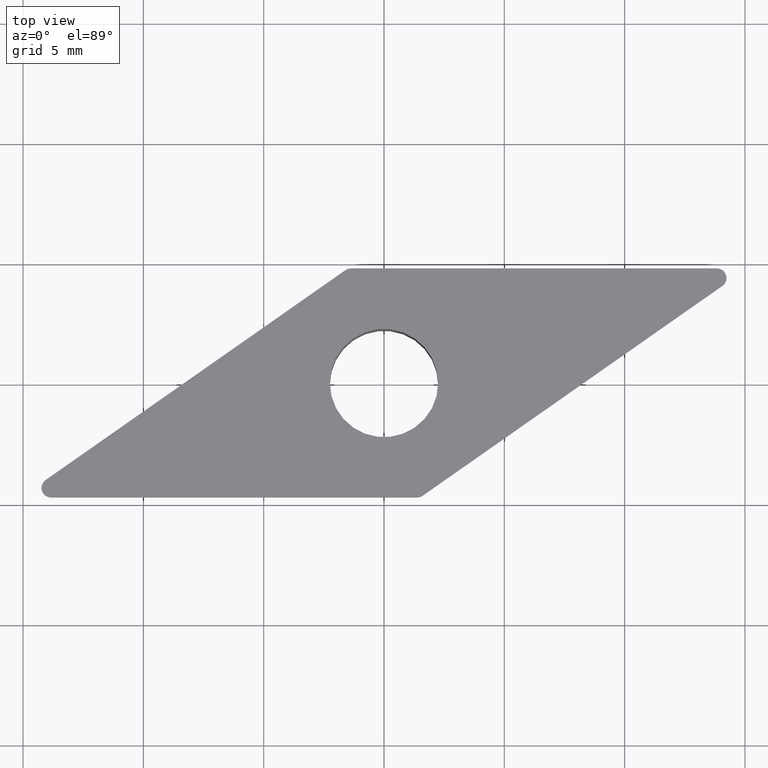
[diagram: clean part render]
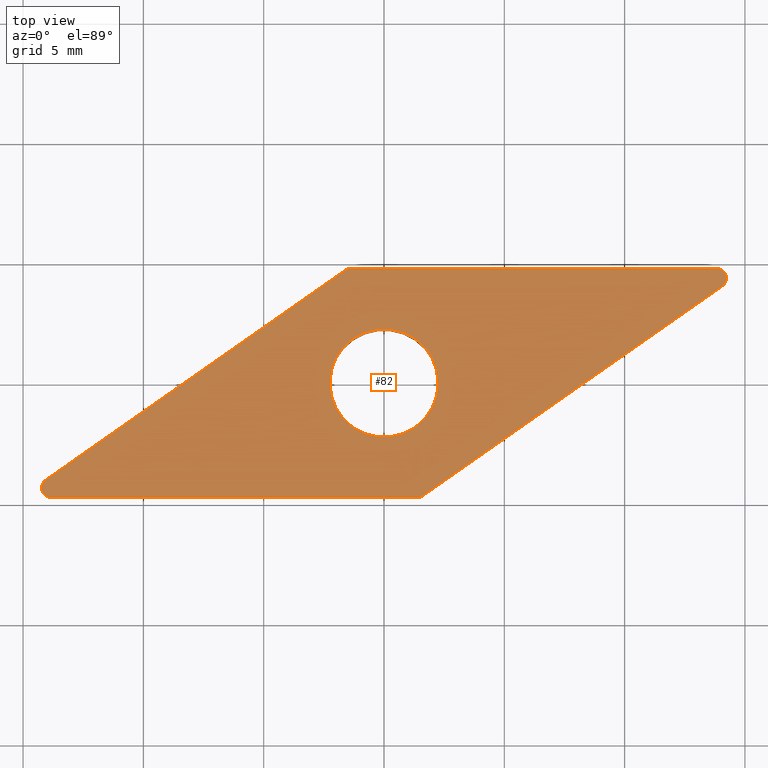
[diagram: same view with one face highlighted and labeled with its STEP entity id]
A machine part, top view. The second image highlights one B-rep face of the part: STEP entity #82.
In plain terms, the highlighted planar face has unit normal (0, 0, -1).
Its self-contained STEP definition (entity closure, byte-faithful):
#11 = EDGE_CURVE ( 'NONE', #434, #347, #332, .T. ) ;
#12 = ORIENTED_EDGE ( 'NONE', *, *, #296, .T. ) ;
#13 = CARTESIAN_POINT ( 'NONE',  ( 13.83608232530964200, 4.762500000000003700, 0.0000000000000000000 ) ) ;
#18 = EDGE_CURVE ( 'NONE', #356, #384, #289, .T. ) ;
#20 = EDGE_LOOP ( 'NONE', ( #33, #350 ) ) ;
#22 = CIRCLE ( 'NONE', #303, 2.250000000000000000 ) ;
#33 = ORIENTED_EDGE ( 'NONE', *, *, #368, .F. ) ;
#35 = CARTESIAN_POINT ( 'NONE',  ( -14.06551289985006100, -4.034839182284403400, 0.0000000000000000000 ) ) ;
#42 = VERTEX_POINT ( 'NONE', #13 ) ;
#52 = ORIENTED_EDGE ( 'NONE', *, *, #397, .T. ) ;
#53 = AXIS2_PLACEMENT_3D ( 'NONE', #328, #379, #472 ) ;
#60 = DIRECTION ( 'NONE',  ( -1.000000000000000000, 0.0000000000000000000, -0.0000000000000000000 ) ) ;
#69 = DIRECTION ( 'NONE',  ( -0.0000000000000000000, -0.0000000000000000000, 1.000000000000000000 ) ) ;
#70 = CARTESIAN_POINT ( 'NONE',  ( -13.83608232530964500, -4.362500000000001600, 0.0000000000000000000 ) ) ;
#80 = CIRCLE ( 'NONE', #90, 0.3999999999999993000 ) ;
#82 = ADVANCED_FACE ( 'NONE', ( #269, #284 ), #343, .F. ) ;
#90 = AXIS2_PLACEMENT_3D ( 'NONE', #176, #175, #174 ) ;
#91 = CARTESIAN_POINT ( 'NONE',  ( -13.83608232530964500, -4.762500000000002000, 0.0000000000000000000 ) ) ;
#93 = VECTOR ( 'NONE', #152, 1000.000000000000000 ) ;
#107 = LINE ( 'NONE', #385, #93 ) ;
#108 = EDGE_CURVE ( 'NONE', #384, #42, #245, .T. ) ;
#121 = DIRECTION ( 'NONE',  ( -1.000000000000000000, 0.0000000000000000000, 0.0000000000000000000 ) ) ;
#129 = CARTESIAN_POINT ( 'NONE',  ( 15.10472024625493900, 4.762500000000003700, 0.0000000000000000000 ) ) ;
#134 = VECTOR ( 'NONE', #322, 1000.000000000000000 ) ;
#152 = DIRECTION ( 'NONE',  ( 1.000000000000000000, 5.223078789528969500E-017, -0.0000000000000000000 ) ) ;
#155 = CARTESIAN_POINT ( 'NONE',  ( 1.604921541024971800, -4.690160817715598000, 0.0000000000000000000 ) ) ;
#157 = CARTESIAN_POINT ( 'NONE',  ( -15.10472024625494200, -4.762500000000002000, 0.0000000000000000000 ) ) ;
#163 = CARTESIAN_POINT ( 'NONE',  ( -2.250000000000000000, 2.755455298081544300E-016, 0.0000000000000000000 ) ) ;
#174 = DIRECTION ( 'NONE',  ( -1.000000000000000000, 2.168404344971012800E-015, 0.0000000000000000000 ) ) ;
#175 = DIRECTION ( 'NONE',  ( -0.0000000000000000000, -0.0000000000000000000, 1.000000000000000000 ) ) ;
#176 = CARTESIAN_POINT ( 'NONE',  ( -13.83608232530964500, -4.362500000000001600, 0.0000000000000000000 ) ) ;
#177 = CIRCLE ( 'NONE', #279, 2.250000000000000000 ) ;
#180 = LINE ( 'NONE', #442, #134 ) ;
#188 = CARTESIAN_POINT ( 'NONE',  ( 1.375490966484556300, -4.762500000000001100, 0.0000000000000000000 ) ) ;
#189 = DIRECTION ( 'NONE',  ( 0.0000000000000000000, 0.0000000000000000000, -1.000000000000000000 ) ) ;
#198 = CIRCLE ( 'NONE', #323, 0.3999999999999999700 ) ;
#202 = AXIS2_PLACEMENT_3D ( 'NONE', #70, #214, #334 ) ;
#203 = VECTOR ( 'NONE', #207, 1000.000000000000100 ) ;
#206 = CARTESIAN_POINT ( 'NONE',  ( 2.250000000000000000, 0.0000000000000000000, 0.0000000000000000000 ) ) ;
#207 = DIRECTION ( 'NONE',  ( -0.8191520442889946900, -0.5735764363510417200, -0.0000000000000000000 ) ) ;
#214 = DIRECTION ( 'NONE',  ( -0.0000000000000000000, -0.0000000000000000000, 1.000000000000000000 ) ) ;
#215 = CARTESIAN_POINT ( 'NONE',  ( -14.23608232530964400, -4.362500000000001600, 0.0000000000000000000 ) ) ;
#219 = DIRECTION ( 'NONE',  ( -1.000000000000000000, 1.084202172485504600E-014, 0.0000000000000000000 ) ) ;
#229 = EDGE_CURVE ( 'NONE', #456, #356, #198, .T. ) ;
#230 = DIRECTION ( 'NONE',  ( 1.000000000000000000, 0.0000000000000000000, 0.0000000000000000000 ) ) ;
#235 = DIRECTION ( 'NONE',  ( 0.0000000000000000000, 0.0000000000000000000, 1.000000000000000000 ) ) ;
#239 = CARTESIAN_POINT ( 'NONE',  ( 0.0000000000000000000, 0.0000000000000000000, 0.0000000000000000000 ) ) ;
#244 = DIRECTION ( 'NONE',  ( -0.0000000000000000000, -0.0000000000000000000, 1.000000000000000000 ) ) ;
#245 = CIRCLE ( 'NONE', #53, 0.3999999999999993000 ) ;
#250 = ORIENTED_EDGE ( 'NONE', *, *, #427, .T. ) ;
#256 = CARTESIAN_POINT ( 'NONE',  ( 0.0000000000000000000, 0.0000000000000000000, 0.0000000000000000000 ) ) ;
#257 = ORIENTED_EDGE ( 'NONE', *, *, #450, .T. ) ;
#258 = CARTESIAN_POINT ( 'NONE',  ( -1.604921541024973500, 4.690160817715596200, 0.0000000000000000000 ) ) ;
#259 = CARTESIAN_POINT ( 'NONE',  ( -1.375490966484558500, 4.362499999999998900, 0.0000000000000000000 ) ) ;
#265 = ORIENTED_EDGE ( 'NONE', *, *, #229, .T. ) ;
#269 = FACE_BOUND ( 'NONE', #20, .T. ) ;
#273 = CARTESIAN_POINT ( 'NONE',  ( 1.375490966484556300, -4.362500000000000700, 0.0000000000000000000 ) ) ;
#275 = LINE ( 'NONE', #157, #203 ) ;
#279 = AXIS2_PLACEMENT_3D ( 'NONE', #239, #235, #230 ) ;
#282 = CIRCLE ( 'NONE', #301, 0.3999999999999999700 ) ;
#284 = FACE_OUTER_BOUND ( 'NONE', #357, .T. ) ;
#287 = VECTOR ( 'NONE', #371, 1000.000000000000100 ) ;
#289 = LINE ( 'NONE', #129, #287 ) ;
#294 = ORIENTED_EDGE ( 'NONE', *, *, #11, .T. ) ;
#296 = EDGE_CURVE ( 'NONE', #349, #417, #275, .T. ) ;
#298 = EDGE_CURVE ( 'NONE', #344, #349, #282, .T. ) ;
#301 = AXIS2_PLACEMENT_3D ( 'NONE', #259, #244, #219 ) ;
#303 = AXIS2_PLACEMENT_3D ( 'NONE', #422, #390, #386 ) ;
#322 = DIRECTION ( 'NONE',  ( -1.000000000000000000, -2.611539394764484900E-016, -0.0000000000000000000 ) ) ;
#323 = AXIS2_PLACEMENT_3D ( 'NONE', #273, #69, #121 ) ;
#328 = CARTESIAN_POINT ( 'NONE',  ( 13.83608232530964200, 4.362500000000003400, 0.0000000000000000000 ) ) ;
#332 = CIRCLE ( 'NONE', #202, 0.3999999999999993000 ) ;
#334 = DIRECTION ( 'NONE',  ( -1.000000000000000000, 0.0000000000000000000, 0.0000000000000000000 ) ) ;
#343 = PLANE ( 'NONE',  #474 ) ;
#344 = VERTEX_POINT ( 'NONE', #428 ) ;
#347 = VERTEX_POINT ( 'NONE', #91 ) ;
#349 = VERTEX_POINT ( 'NONE', #258 ) ;
#350 = ORIENTED_EDGE ( 'NONE', *, *, #420, .F. ) ;
#356 = VERTEX_POINT ( 'NONE', #155 ) ;
#357 = EDGE_LOOP ( 'NONE', ( #52, #412, #12, #257, #294, #250, #265, #377, #437 ) ) ;
#359 = VERTEX_POINT ( 'NONE', #163 ) ;
#360 = VERTEX_POINT ( 'NONE', #206 ) ;
#368 = EDGE_CURVE ( 'NONE', #360, #359, #177, .T. ) ;
#371 = DIRECTION ( 'NONE',  ( 0.8191520442889945700, 0.5735764363510419400, -0.0000000000000000000 ) ) ;
#377 = ORIENTED_EDGE ( 'NONE', *, *, #18, .T. ) ;
#379 = DIRECTION ( 'NONE',  ( -0.0000000000000000000, -0.0000000000000000000, 1.000000000000000000 ) ) ;
#384 = VERTEX_POINT ( 'NONE', #462 ) ;
#385 = CARTESIAN_POINT ( 'NONE',  ( 1.501610482036145800, -4.762500000000001100, 0.0000000000000000000 ) ) ;
#386 = DIRECTION ( 'NONE',  ( 1.000000000000000000, 0.0000000000000000000, 0.0000000000000000000 ) ) ;
#390 = DIRECTION ( 'NONE',  ( 0.0000000000000000000, 0.0000000000000000000, 1.000000000000000000 ) ) ;
#397 = EDGE_CURVE ( 'NONE', #42, #344, #180, .T. ) ;
#412 = ORIENTED_EDGE ( 'NONE', *, *, #298, .T. ) ;
#417 = VERTEX_POINT ( 'NONE', #35 ) ;
#420 = EDGE_CURVE ( 'NONE', #359, #360, #22, .T. ) ;
#422 = CARTESIAN_POINT ( 'NONE',  ( 0.0000000000000000000, 0.0000000000000000000, 0.0000000000000000000 ) ) ;
#427 = EDGE_CURVE ( 'NONE', #347, #456, #107, .T. ) ;
#428 = CARTESIAN_POINT ( 'NONE',  ( -1.375490966484558500, 4.762499999999999300, 0.0000000000000000000 ) ) ;
#434 = VERTEX_POINT ( 'NONE', #215 ) ;
#437 = ORIENTED_EDGE ( 'NONE', *, *, #108, .T. ) ;
#442 = CARTESIAN_POINT ( 'NONE',  ( -1.501610482036148000, 4.762499999999999300, 0.0000000000000000000 ) ) ;
#450 = EDGE_CURVE ( 'NONE', #417, #434, #80, .T. ) ;
#456 = VERTEX_POINT ( 'NONE', #188 ) ;
#462 = CARTESIAN_POINT ( 'NONE',  ( 14.06551289985005900, 4.034839182284405200, 0.0000000000000000000 ) ) ;
#472 = DIRECTION ( 'NONE',  ( -1.000000000000000000, 2.168404344971012800E-015, 0.0000000000000000000 ) ) ;
#474 = AXIS2_PLACEMENT_3D ( 'NONE', #256, #189, #60 ) ;